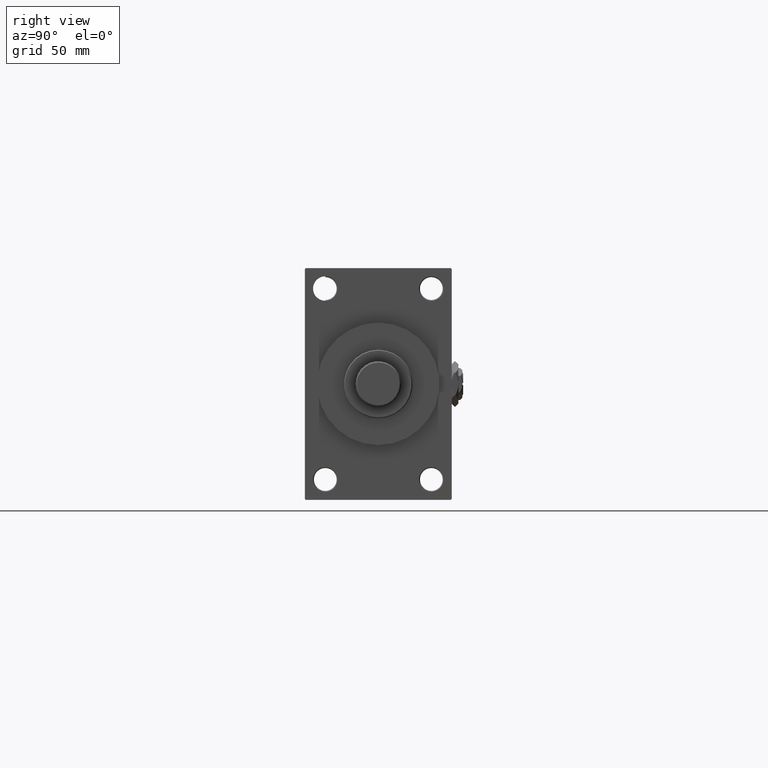
[diagram: clean part render]
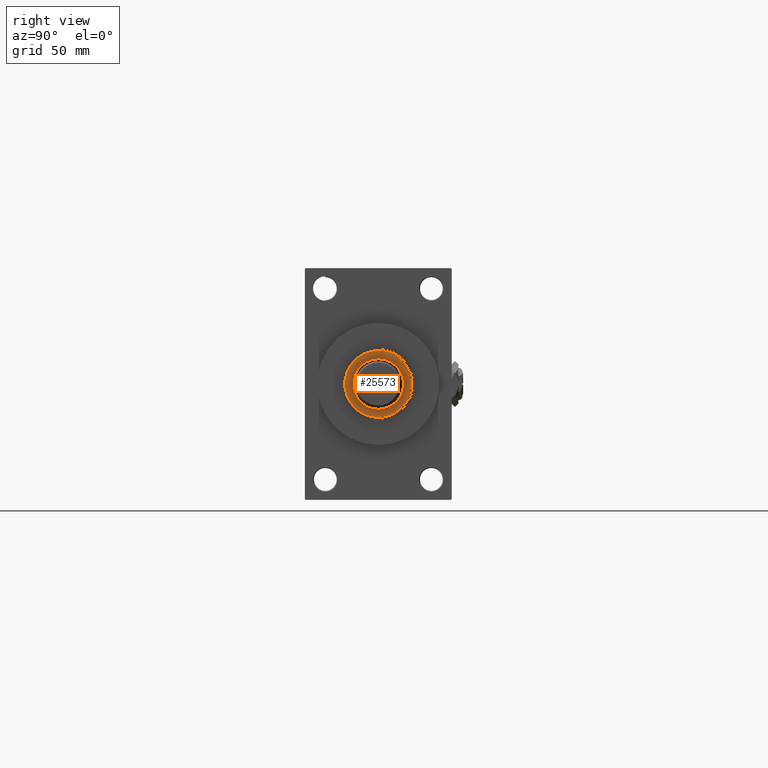
[diagram: same view with one face highlighted and labeled with its STEP entity id]
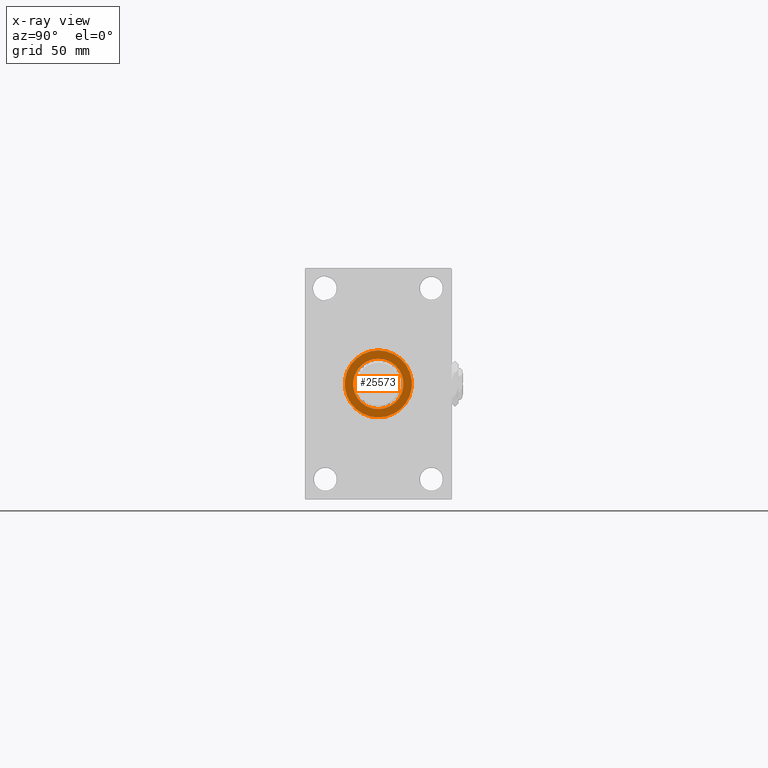
[diagram: x-ray of the same camera — body ghosted, the highlighted face saturated]
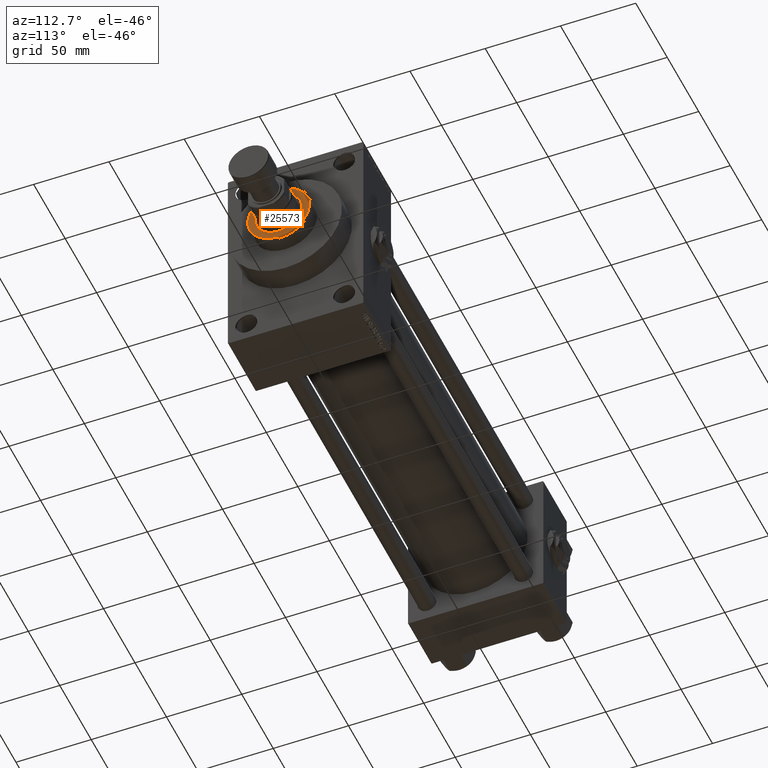
[diagram: same view with one face highlighted and labeled with its STEP entity id]
A machine part, right view. The second image highlights one B-rep face of the part: STEP entity #25573.
The next image is the same camera in x-ray: the body ghosted, the highlighted face saturated — about 0% of this face is hidden behind the body in this view.
A second angle (auxiliary view) of the same face is appended — the face is thin or edge-on in the first view.
In plain terms, the highlighted planar face has unit normal (1, -0, -0).
Its self-contained STEP definition (entity closure, byte-faithful):
#1068 = DIRECTION ( 'NONE',  ( 0.000000000000000000, 0.000000000000000000, 1.000000000000000000 ) ) ;
#2012 = DIRECTION ( 'NONE',  ( 0.000000000000000000, 0.000000000000000000, 1.000000000000000000 ) ) ;
#6712 = EDGE_LOOP ( 'NONE', ( #30354, #27017 ) ) ;
#7043 = VERTEX_POINT ( 'NONE', #8410 ) ;
#7888 = DIRECTION ( 'NONE',  ( 0.000000000000000000, 0.000000000000000000, 1.000000000000000000 ) ) ;
#8410 = CARTESIAN_POINT ( 'NONE',  ( -15.50000000000000000, 1.898202538678397557E-15, 54.26000000000000512 ) ) ;
#9237 = VERTEX_POINT ( 'NONE', #22297 ) ;
#9246 = VERTEX_POINT ( 'NONE', #44957 ) ;
#9953 = FACE_OUTER_BOUND ( 'NONE', #30704, .T. ) ;
#13000 = DIRECTION ( 'NONE',  ( 1.000000000000000000, 0.000000000000000000, -0.000000000000000000 ) ) ;
#13301 = CIRCLE ( 'NONE', #48685, 15.50000000000000000 ) ;
#14181 = AXIS2_PLACEMENT_3D ( 'NONE', #15910, #7888, #31511 ) ;
#15910 = CARTESIAN_POINT ( 'NONE',  ( 0.000000000000000000, 0.000000000000000000, 54.26000000000000512 ) ) ;
#16448 = EDGE_CURVE ( 'NONE', #35102, #7043, #22232, .T. ) ;
#17247 = DIRECTION ( 'NONE',  ( 0.000000000000000000, 0.000000000000000000, 1.000000000000000000 ) ) ;
#17339 = DIRECTION ( 'NONE',  ( 1.000000000000000000, 0.000000000000000000, 0.000000000000000000 ) ) ;
#19404 = DIRECTION ( 'NONE',  ( 0.000000000000000000, 0.000000000000000000, 1.000000000000000000 ) ) ;
#20033 = CIRCLE ( 'NONE', #35315, 20.50000000000001776 ) ;
#21787 = AXIS2_PLACEMENT_3D ( 'NONE', #47577, #2012, #17339 ) ;
#22232 = CIRCLE ( 'NONE', #14181, 15.50000000000000000 ) ;
#22297 = CARTESIAN_POINT ( 'NONE',  ( 20.50000000000001776, 2.541142108230759057E-15, 54.26000000000000512 ) ) ;
#22700 = CARTESIAN_POINT ( 'NONE',  ( 0.000000000000000000, 0.000000000000000000, 54.26000000000000512 ) ) ;
#23347 = EDGE_CURVE ( 'NONE', #7043, #35102, #13301, .T. ) ;
#25573 = ADVANCED_FACE ( 'NONE', ( #36393, #9953 ), #47732, .T. ) ;
#27017 = ORIENTED_EDGE ( 'NONE', *, *, #23347, .F. ) ;
#30354 = ORIENTED_EDGE ( 'NONE', *, *, #16448, .F. ) ;
#30704 = EDGE_LOOP ( 'NONE', ( #45548, #49052 ) ) ;
#31511 = DIRECTION ( 'NONE',  ( 1.000000000000000000, 0.000000000000000000, 0.000000000000000000 ) ) ;
#33873 = CIRCLE ( 'NONE', #21787, 20.50000000000001776 ) ;
#34338 = CARTESIAN_POINT ( 'NONE',  ( 15.50000000000000000, 0.000000000000000000, 54.26000000000000512 ) ) ;
#35102 = VERTEX_POINT ( 'NONE', #34338 ) ;
#35315 = AXIS2_PLACEMENT_3D ( 'NONE', #22700, #19404, #38062 ) ;
#35972 = EDGE_CURVE ( 'NONE', #9237, #9246, #20033, .T. ) ;
#36023 = CARTESIAN_POINT ( 'NONE',  ( 0.000000000000000000, 0.000000000000000000, 54.26000000000000512 ) ) ;
#36393 = FACE_BOUND ( 'NONE', #6712, .T. ) ;
#38062 = DIRECTION ( 'NONE',  ( 1.000000000000000000, 0.000000000000000000, 0.000000000000000000 ) ) ;
#39317 = DIRECTION ( 'NONE',  ( 1.000000000000000000, 0.000000000000000000, 0.000000000000000000 ) ) ;
#39997 = EDGE_CURVE ( 'NONE', #9246, #9237, #33873, .T. ) ;
#40718 = AXIS2_PLACEMENT_3D ( 'NONE', #43716, #17247, #13000 ) ;
#43716 = CARTESIAN_POINT ( 'NONE',  ( 0.000000000000000000, 0.000000000000000000, 54.26000000000000512 ) ) ;
#44957 = CARTESIAN_POINT ( 'NONE',  ( -20.50000000000001776, 0.000000000000000000, 54.26000000000000512 ) ) ;
#45548 = ORIENTED_EDGE ( 'NONE', *, *, #39997, .T. ) ;
#47577 = CARTESIAN_POINT ( 'NONE',  ( 0.000000000000000000, 0.000000000000000000, 54.26000000000000512 ) ) ;
#47732 = PLANE ( 'NONE',  #40718 ) ;
#48685 = AXIS2_PLACEMENT_3D ( 'NONE', #36023, #1068, #39317 ) ;
#49052 = ORIENTED_EDGE ( 'NONE', *, *, #35972, .T. ) ;